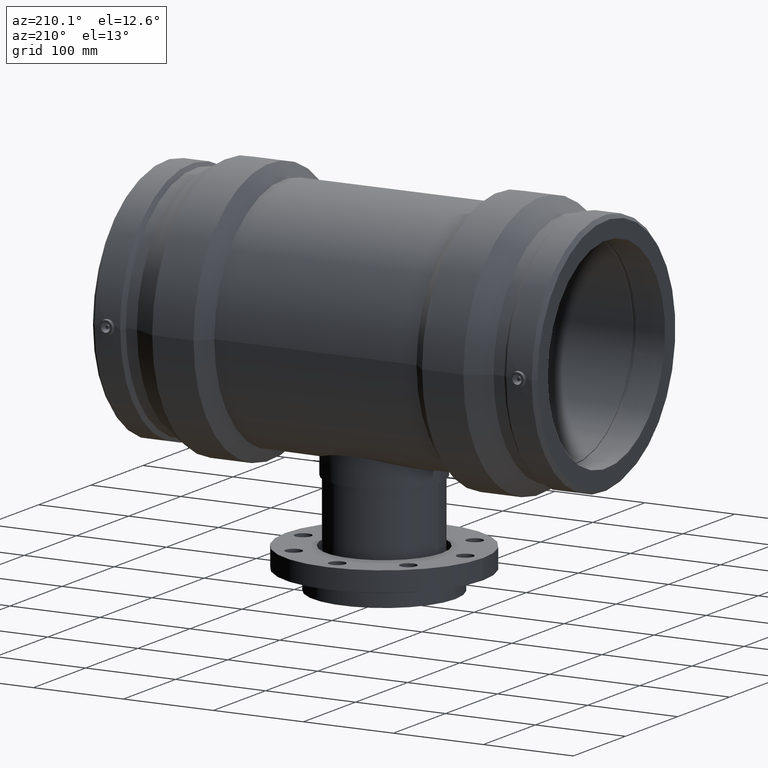
[diagram: clean part render]
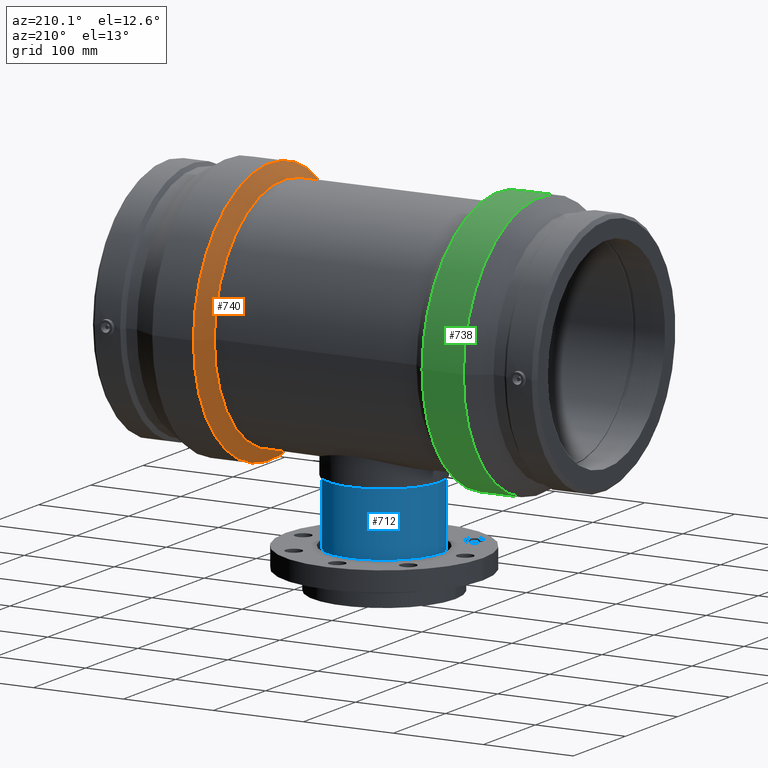
[diagram: same view with three faces highlighted in distinct colors, each labeled with its STEP entity id]
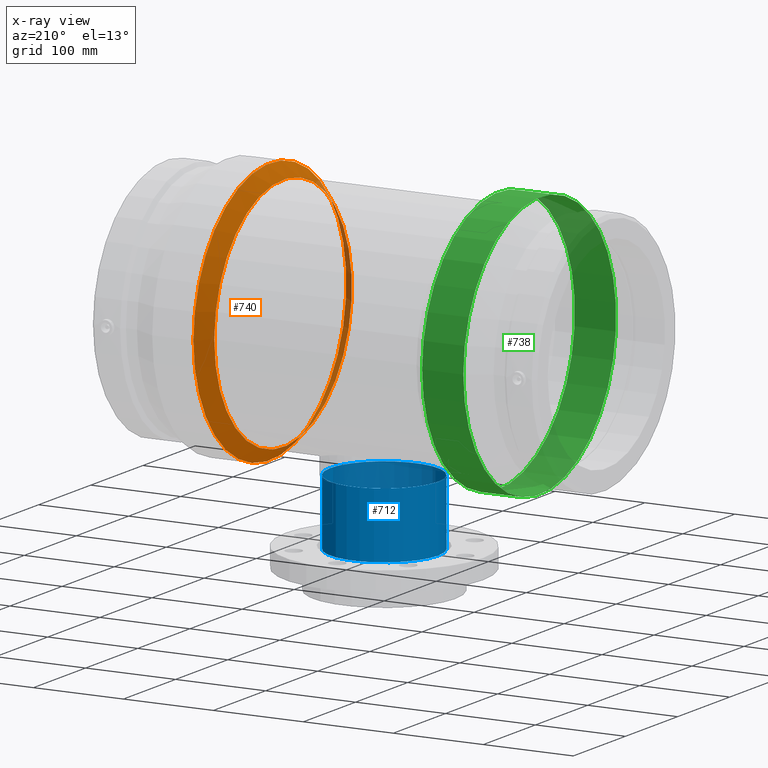
[diagram: x-ray of the same camera — body ghosted, the three highlighted faces saturated]
A machine part, auxiliary view with three faces highlighted in distinct colors.
The next image is the same camera in x-ray (body ghosted, the three faces saturated) — at least one of them is partly hidden behind the body in this view.
Their STEP definitions:

[orange] entity #740 — the highlighted conical surface has half-angle 45 deg.
#22=CONICAL_SURFACE('',#847,139.175,45.);
#100=FACE_BOUND('',#373,.T.);
#147=CIRCLE('',#807,131.85);
#167=CIRCLE('',#848,146.5);
#256=FACE_OUTER_BOUND('',#372,.T.);
#372=EDGE_LOOP('',(#658));
#373=EDGE_LOOP('',(#659));
#448=VERTEX_POINT('',#1543);
#470=VERTEX_POINT('',#1674);
#518=EDGE_CURVE('',#448,#448,#147,.T.);
#540=EDGE_CURVE('',#470,#470,#167,.T.);
#658=ORIENTED_EDGE('',*,*,#518,.T.);
#659=ORIENTED_EDGE('',*,*,#540,.F.);
#740=ADVANCED_FACE('',(#256,#100),#22,.T.);
#807=AXIS2_PLACEMENT_3D('',#1544,#979,#980);
#847=AXIS2_PLACEMENT_3D('',#1673,#1059,#1060);
#848=AXIS2_PLACEMENT_3D('',#1675,#1061,#1062);
#979=DIRECTION('center_axis',(1.,0.,0.));
#980=DIRECTION('ref_axis',(0.,0.,-1.));
#1059=DIRECTION('center_axis',(1.,0.,0.));
#1060=DIRECTION('ref_axis',(0.,1.,0.));
#1061=DIRECTION('center_axis',(1.,0.,0.));
#1062=DIRECTION('ref_axis',(0.,0.,-1.));
#1543=CARTESIAN_POINT('',(112.385,131.85,0.));
#1544=CARTESIAN_POINT('Origin',(112.385,0.,0.));
#1673=CARTESIAN_POINT('Origin',(119.71,0.,0.));
#1674=CARTESIAN_POINT('',(127.035,146.5,0.));
#1675=CARTESIAN_POINT('Origin',(127.035,0.,0.));

[blue] entity #712 — the highlighted cylindrical surface (bore or boss wall) has radius 60 mm, axis along (-0, 0, -1).
#56=FACE_BOUND('',#301,.T.);
#140=CIRCLE('',#792,60.);
#141=CIRCLE('',#794,60.);
#195=CYLINDRICAL_SURFACE('',#793,60.);
#228=FACE_OUTER_BOUND('',#300,.T.);
#300=EDGE_LOOP('',(#586));
#301=EDGE_LOOP('',(#587));
#441=VERTEX_POINT('',#1521);
#442=VERTEX_POINT('',#1524);
#511=EDGE_CURVE('',#441,#441,#140,.T.);
#512=EDGE_CURVE('',#442,#442,#141,.T.);
#586=ORIENTED_EDGE('',*,*,#511,.T.);
#587=ORIENTED_EDGE('',*,*,#512,.F.);
#712=ADVANCED_FACE('',(#228,#56),#195,.T.);
#792=AXIS2_PLACEMENT_3D('',#1522,#949,#950);
#793=AXIS2_PLACEMENT_3D('',#1523,#951,#952);
#794=AXIS2_PLACEMENT_3D('',#1525,#953,#954);
#949=DIRECTION('center_axis',(-1.22464679914735E-16,0.,-1.));
#950=DIRECTION('ref_axis',(1.,0.,-1.22464679914735E-16));
#951=DIRECTION('center_axis',(-1.22464679914735E-16,0.,-1.));
#952=DIRECTION('ref_axis',(-1.,0.,0.));
#953=DIRECTION('center_axis',(-1.22464679914735E-16,0.,-1.));
#954=DIRECTION('ref_axis',(1.,0.,-1.22464679914735E-16));
#1521=CARTESIAN_POINT('',(-60.,0.,-146.5));
#1522=CARTESIAN_POINT('Origin',(-1.79410756075087E-14,0.,-146.5));
#1523=CARTESIAN_POINT('Origin',(-2.24012236946718E-14,0.,-182.919872981078));
#1524=CARTESIAN_POINT('',(-60.,0.,-219.339745962156));
#1525=CARTESIAN_POINT('Origin',(-2.68613717818348E-14,0.,-219.339745962156));

[green] entity #738 — the highlighted cylindrical surface (bore or boss wall) has radius 146.5 mm, axis along (1, 0, 0).
#98=FACE_BOUND('',#369,.T.);
#165=CIRCLE('',#843,146.5);
#166=CIRCLE('',#845,146.5);
#206=CYLINDRICAL_SURFACE('',#844,146.5);
#254=FACE_OUTER_BOUND('',#368,.T.);
#368=EDGE_LOOP('',(#654));
#369=EDGE_LOOP('',(#655));
#468=VERTEX_POINT('',#1667);
#469=VERTEX_POINT('',#1670);
#538=EDGE_CURVE('',#468,#468,#165,.T.);
#539=EDGE_CURVE('',#469,#469,#166,.T.);
#654=ORIENTED_EDGE('',*,*,#538,.T.);
#655=ORIENTED_EDGE('',*,*,#539,.F.);
#738=ADVANCED_FACE('',(#254,#98),#206,.T.);
#843=AXIS2_PLACEMENT_3D('',#1668,#1051,#1052);
#844=AXIS2_PLACEMENT_3D('',#1669,#1053,#1054);
#845=AXIS2_PLACEMENT_3D('',#1671,#1055,#1056);
#1051=DIRECTION('center_axis',(1.,0.,0.));
#1052=DIRECTION('ref_axis',(0.,0.,-1.));
#1053=DIRECTION('center_axis',(1.,0.,0.));
#1054=DIRECTION('ref_axis',(0.,1.,0.));
#1055=DIRECTION('center_axis',(1.,0.,0.));
#1056=DIRECTION('ref_axis',(0.,0.,-1.));
#1667=CARTESIAN_POINT('',(-172.9,146.5,0.));
#1668=CARTESIAN_POINT('Origin',(-172.9,0.,0.));
#1669=CARTESIAN_POINT('Origin',(-149.9675,0.,0.));
#1670=CARTESIAN_POINT('',(-127.035,146.5,0.));
#1671=CARTESIAN_POINT('Origin',(-127.035,0.,0.));